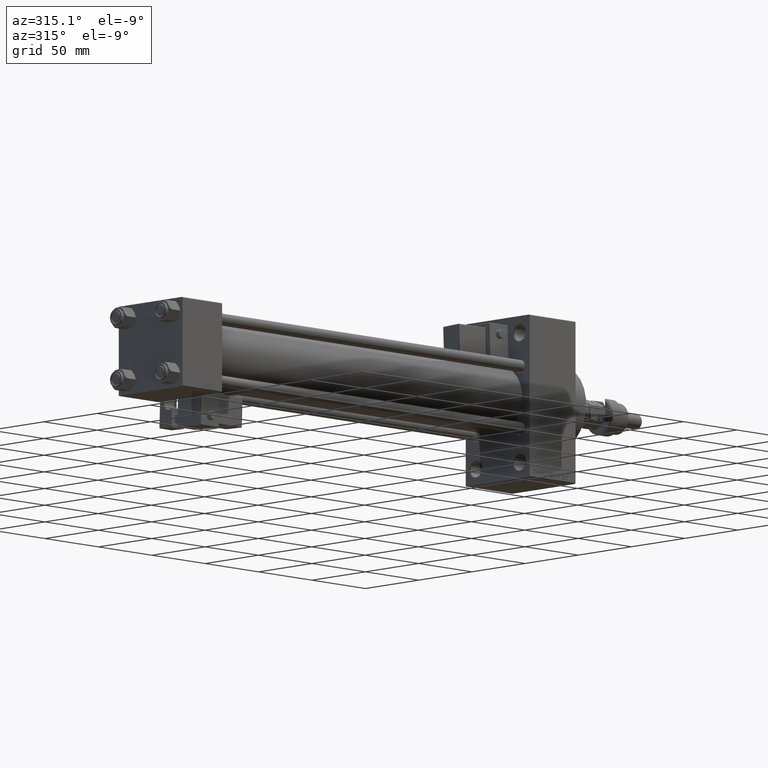
[diagram: clean part render]
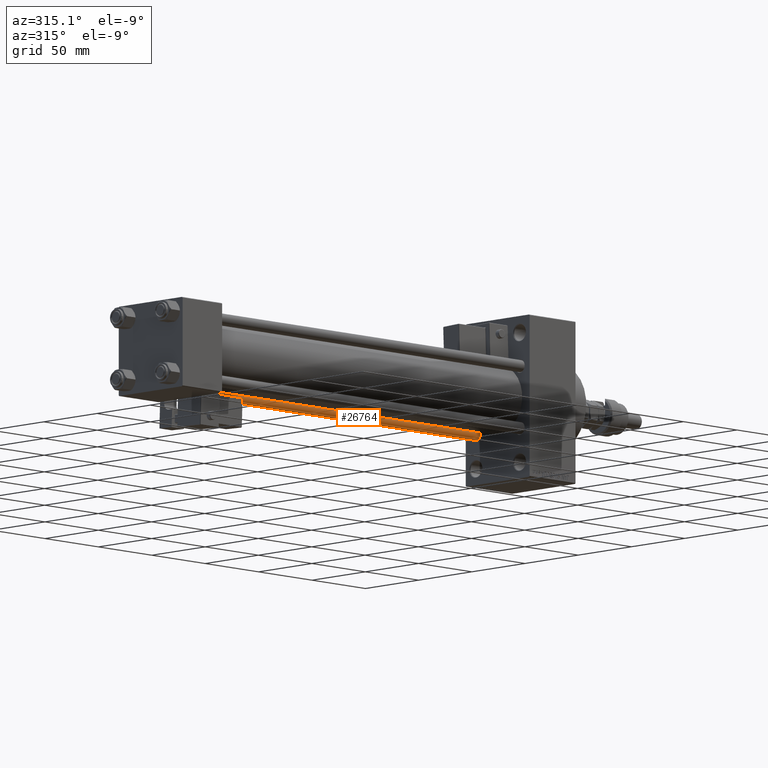
[diagram: same view with one face highlighted and labeled with its STEP entity id]
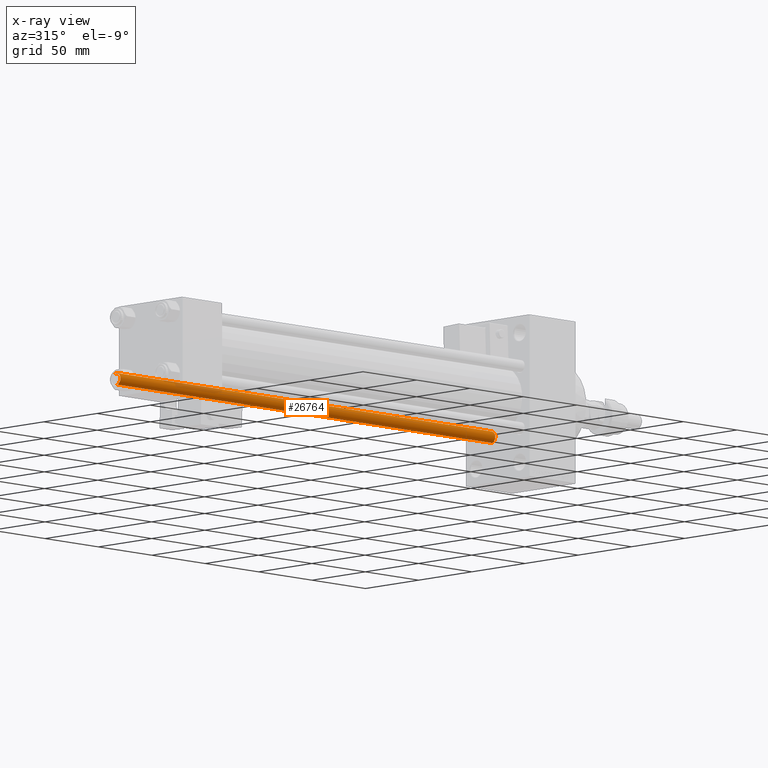
[diagram: x-ray of the same camera — body ghosted, the highlighted face saturated]
A machine part, auxiliary view. The second image highlights one B-rep face of the part: STEP entity #26764.
The next image is the same camera in x-ray: the body ghosted, the highlighted face saturated — about 6% of this face is hidden behind the body in this view.
In plain terms, the highlighted cylindrical surface (edge-blend (fillet) strip) has radius 4 mm, axis along (1, -0, 0).
Its self-contained STEP definition (entity closure, byte-faithful):
#872 = LINE ( 'NONE', #31061, #10813 ) ;
#1042 = VERTEX_POINT ( 'NONE', #9571 ) ;
#2445 = LINE ( 'NONE', #15883, #35041 ) ;
#4508 = DIRECTION ( 'NONE',  ( 1.000000000000000000, 0.000000000000000000, 0.000000000000000000 ) ) ;
#6306 = VERTEX_POINT ( 'NONE', #47964 ) ;
#7141 = ORIENTED_EDGE ( 'NONE', *, *, #10793, .T. ) ;
#8228 = CARTESIAN_POINT ( 'NONE',  ( 0.000000000000000000, 0.000000000000000000, 351.5000000000000000 ) ) ;
#9571 = CARTESIAN_POINT ( 'NONE',  ( 4.000000000000000000, 4.898587196589412829E-16, 0.5000000000000004441 ) ) ;
#10793 = EDGE_CURVE ( 'NONE', #6306, #48671, #51672, .T. ) ;
#10813 = VECTOR ( 'NONE', #42877, 1000.000000000000000 ) ;
#15187 = ORIENTED_EDGE ( 'NONE', *, *, #19466, .T. ) ;
#15883 = CARTESIAN_POINT ( 'NONE',  ( 4.000000000000000000, 4.898587196589412829E-16, 352.0000000000000000 ) ) ;
#17486 = AXIS2_PLACEMENT_3D ( 'NONE', #8228, #21925, #34295 ) ;
#18259 = CIRCLE ( 'NONE', #25274, 4.000000000000000000 ) ;
#19466 = EDGE_CURVE ( 'NONE', #48671, #47026, #872, .T. ) ;
#21831 = CARTESIAN_POINT ( 'NONE',  ( -4.000000000000000000, 0.000000000000000000, 351.5000000000000000 ) ) ;
#21925 = DIRECTION ( 'NONE',  ( 0.000000000000000000, 0.000000000000000000, -1.000000000000000000 ) ) ;
#25274 = AXIS2_PLACEMENT_3D ( 'NONE', #32062, #48810, #4508 ) ;
#26764 = ADVANCED_FACE ( 'NONE', ( #46066 ), #33167, .T. ) ;
#28581 = AXIS2_PLACEMENT_3D ( 'NONE', #46334, #41944, #37821 ) ;
#31061 = CARTESIAN_POINT ( 'NONE',  ( -4.000000000000000000, 0.000000000000000000, 352.0000000000000000 ) ) ;
#32062 = CARTESIAN_POINT ( 'NONE',  ( 0.000000000000000000, 0.000000000000000000, 0.5000000000000004441 ) ) ;
#33167 = CYLINDRICAL_SURFACE ( 'NONE', #28581, 4.000000000000000000 ) ;
#34295 = DIRECTION ( 'NONE',  ( 1.000000000000000000, 0.000000000000000000, 0.000000000000000000 ) ) ;
#34348 = ORIENTED_EDGE ( 'NONE', *, *, #45613, .T. ) ;
#35041 = VECTOR ( 'NONE', #49386, 1000.000000000000000 ) ;
#36819 = CARTESIAN_POINT ( 'NONE',  ( -4.000000000000000000, 0.000000000000000000, 0.5000000000000004441 ) ) ;
#37821 = DIRECTION ( 'NONE',  ( -1.000000000000000000, 0.000000000000000000, 0.000000000000000000 ) ) ;
#40586 = ORIENTED_EDGE ( 'NONE', *, *, #48303, .F. ) ;
#41944 = DIRECTION ( 'NONE',  ( -0.000000000000000000, -0.000000000000000000, -1.000000000000000000 ) ) ;
#42877 = DIRECTION ( 'NONE',  ( -0.000000000000000000, -0.000000000000000000, -1.000000000000000000 ) ) ;
#44221 = EDGE_LOOP ( 'NONE', ( #40586, #7141, #15187, #34348 ) ) ;
#45613 = EDGE_CURVE ( 'NONE', #47026, #1042, #18259, .T. ) ;
#46066 = FACE_OUTER_BOUND ( 'NONE', #44221, .T. ) ;
#46334 = CARTESIAN_POINT ( 'NONE',  ( 0.000000000000000000, 0.000000000000000000, 352.0000000000000000 ) ) ;
#47026 = VERTEX_POINT ( 'NONE', #36819 ) ;
#47964 = CARTESIAN_POINT ( 'NONE',  ( 4.000000000000000000, 4.898587196589412829E-16, 351.5000000000000000 ) ) ;
#48303 = EDGE_CURVE ( 'NONE', #6306, #1042, #2445, .T. ) ;
#48671 = VERTEX_POINT ( 'NONE', #21831 ) ;
#48810 = DIRECTION ( 'NONE',  ( -0.000000000000000000, -0.000000000000000000, 1.000000000000000000 ) ) ;
#49386 = DIRECTION ( 'NONE',  ( -0.000000000000000000, -0.000000000000000000, -1.000000000000000000 ) ) ;
#51672 = CIRCLE ( 'NONE', #17486, 4.000000000000000000 ) ;